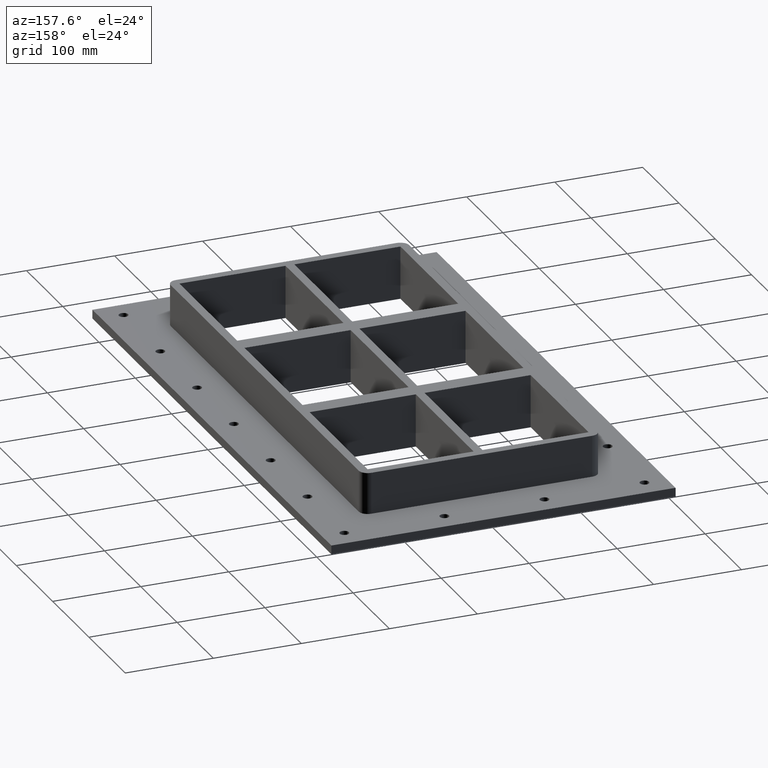
[diagram: clean part render]
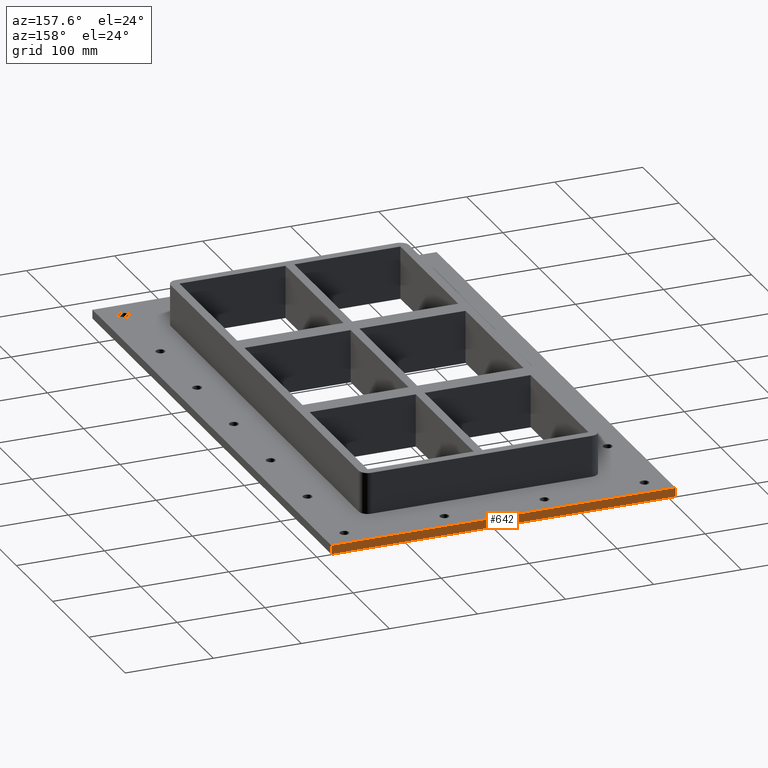
[diagram: same view with one face highlighted and labeled with its STEP entity id]
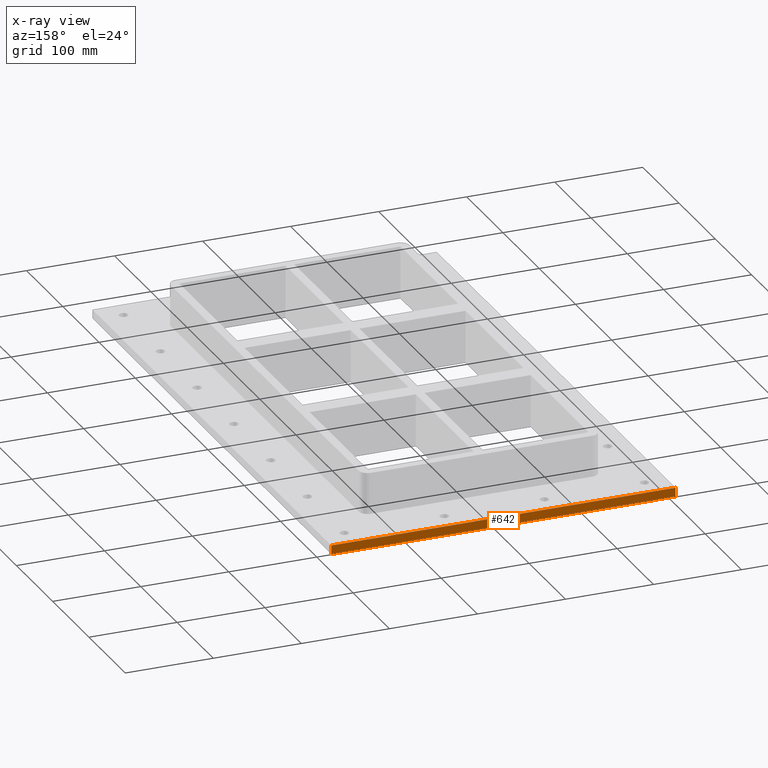
[diagram: x-ray of the same camera — body ghosted, the highlighted face saturated]
A machine part, auxiliary view. The second image highlights one B-rep face of the part: STEP entity #642.
The next image is the same camera in x-ray: the body ghosted, the highlighted face saturated — about 0% of this face is hidden behind the body in this view.
In plain terms, the highlighted planar face has unit normal (0, 1, 0).
Its self-contained STEP definition (entity closure, byte-faithful):
#579=CARTESIAN_POINT('',(-195.50000000000006,329.25,-27.0));
#580=VERTEX_POINT('',#579);
#595=CARTESIAN_POINT('',(-195.50000000000006,329.24999999999989,-17.0));
#596=VERTEX_POINT('',#595);
#603=CARTESIAN_POINT('',(-195.50000000000006,329.25,-27.0));
#604=DIRECTION('',(0.0,0.0,1.0));
#605=VECTOR('',#604,10.0);
#606=LINE('',#603,#605);
#607=EDGE_CURVE('',#580,#596,#606,.T.);
#612=CARTESIAN_POINT('',(195.49999999999997,329.25000000000006,-27.0));
#613=DIRECTION('',(0.0,1.0,0.0));
#614=DIRECTION('',(-1.0,0.0,0.0));
#615=AXIS2_PLACEMENT_3D('',#612,#613,#614);
#616=PLANE('',#615);
#617=CARTESIAN_POINT('',(195.49999999999997,329.25000000000006,-27.0));
#618=VERTEX_POINT('',#617);
#619=CARTESIAN_POINT('',(-195.50000000000006,329.25,-27.0));
#620=DIRECTION('',(1.0,0.0,0.0));
#621=VECTOR('',#620,391.0);
#622=LINE('',#619,#621);
#623=EDGE_CURVE('',#580,#618,#622,.T.);
#624=ORIENTED_EDGE('',*,*,#623,.F.);
#625=ORIENTED_EDGE('',*,*,#607,.T.);
#626=CARTESIAN_POINT('',(195.49999999999997,329.25000000000006,-17.0));
#627=VERTEX_POINT('',#626);
#628=CARTESIAN_POINT('',(195.49999999999994,329.25000000000006,-17.0));
#629=DIRECTION('',(-1.0,0.0,0.0));
#630=VECTOR('',#629,391.0);
#631=LINE('',#628,#630);
#632=EDGE_CURVE('',#627,#596,#631,.T.);
#633=ORIENTED_EDGE('',*,*,#632,.F.);
#634=CARTESIAN_POINT('',(195.49999999999997,329.25000000000006,-27.0));
#635=DIRECTION('',(0.0,0.0,1.0));
#636=VECTOR('',#635,10.0);
#637=LINE('',#634,#636);
#638=EDGE_CURVE('',#618,#627,#637,.T.);
#639=ORIENTED_EDGE('',*,*,#638,.F.);
#640=EDGE_LOOP('',(#624,#625,#633,#639));
#641=FACE_OUTER_BOUND('',#640,.T.);
#642=ADVANCED_FACE('',(#641),#616,.T.);